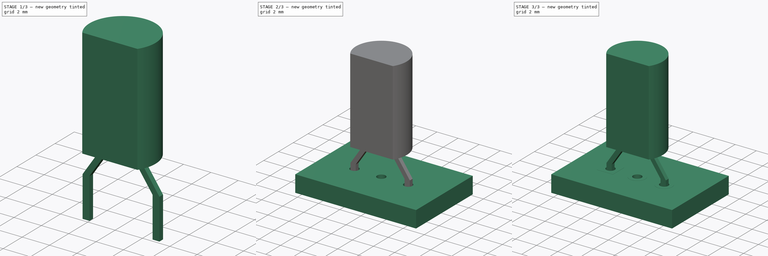
[diagram: build sequence overview — one tinted view per stage of 3, left to right]
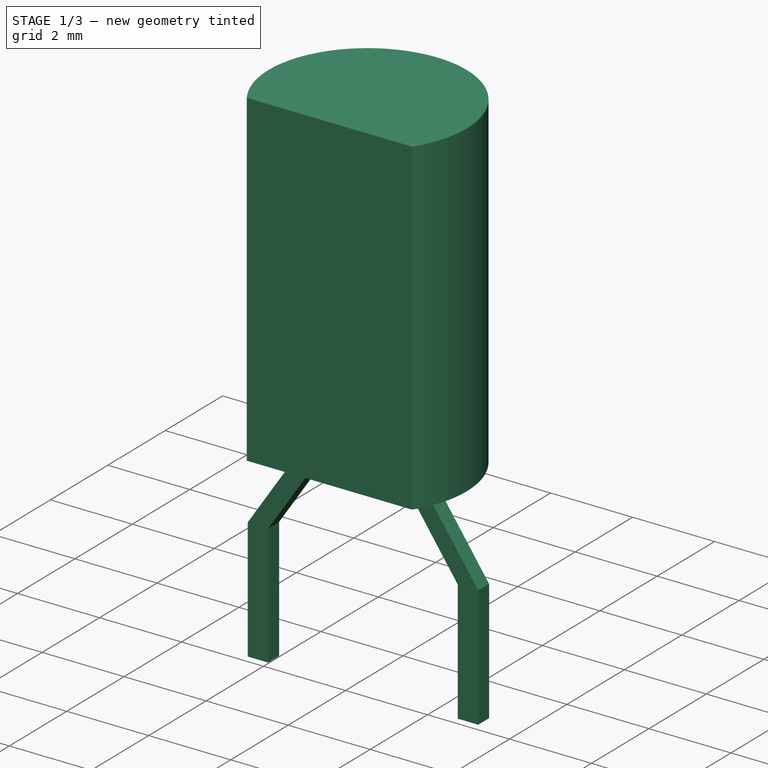
[diagram: stage 1 of 3 — iso view after this stage's code; geometry added in this stage tinted green]
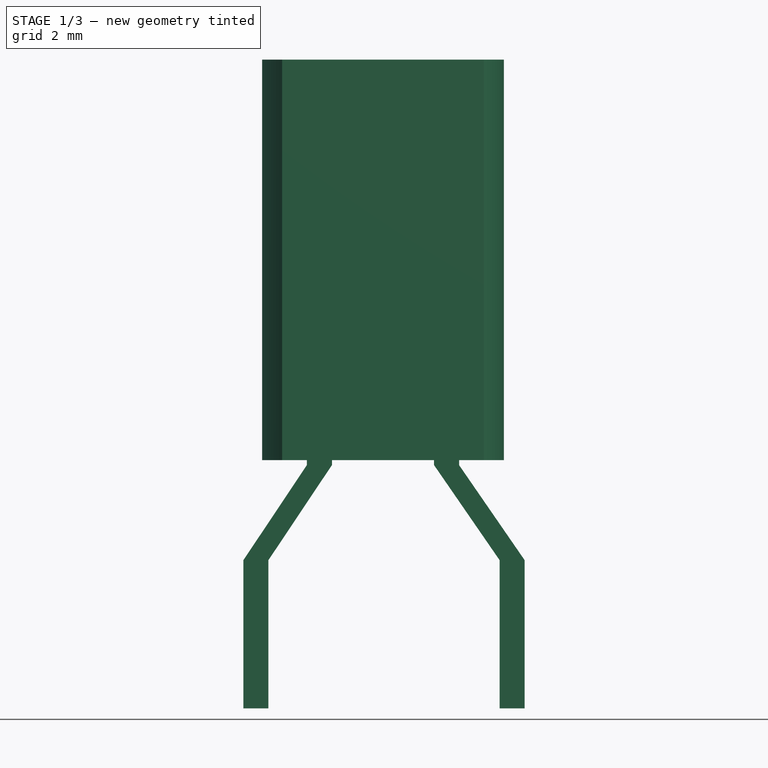
[diagram: stage 1 of 3 — front view after this stage's code; geometry added in this stage tinted green]
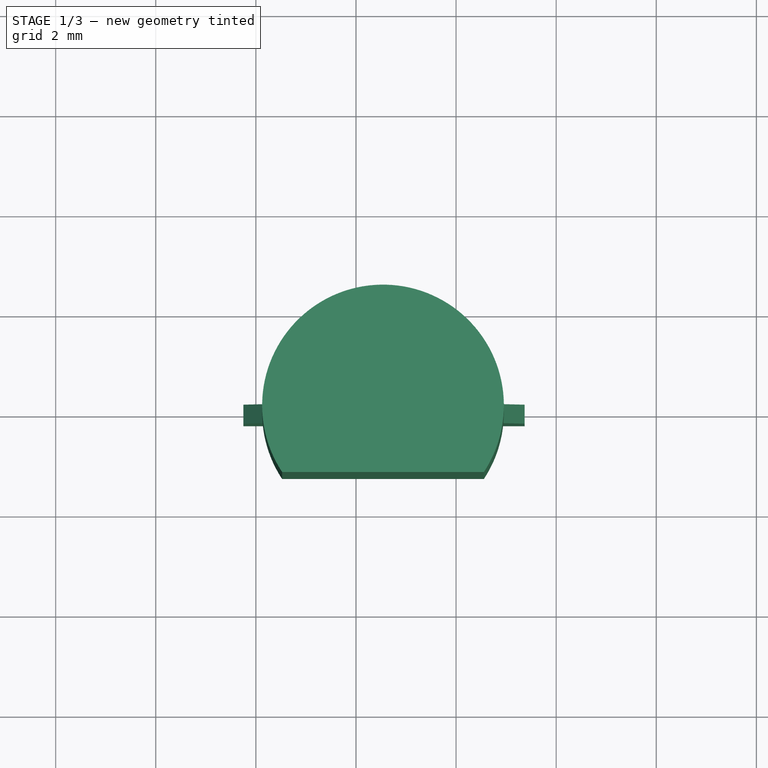
[diagram: stage 1 of 3 — top view after this stage's code; geometry added in this stage tinted green]
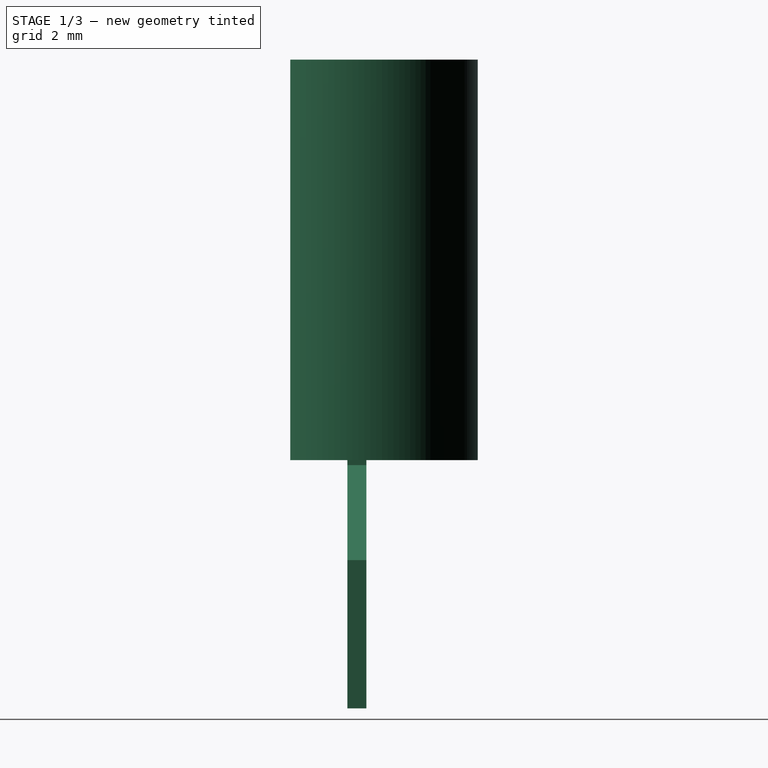
[diagram: stage 1 of 3 — right view after this stage's code; geometry added in this stage tinted green]
FCSTD DOCUMENT  (FreeCAD 0.16R6712 (Git))
Label: TO-92L-2_Wide
License: All rights reserved
LicenseURL: http://en.wikipedia.org/wiki/All_rights_reserved
objects: Part::FeaturePython×7, Sketcher::SketchObject×2, PartDesign::Pad×2, App::DocumentObjectGroup×1, Part::MultiFuse×1
note: 14 computed .brp shape members not serialized (recipe doc carries the construction recipe); baked Part::Feature solids carry a one-line shape summary decoded from their .brp

FEATURE [Sketcher::SketchObject] Sketch
  Placement = pos=(0,0,2.5) rot=(0,0,1;0rad)
  expr: Constraints[8] = 3.68 - 2.35
  expr: Constraints[7] = (5.21 + 4.45) / 4
  sketch-geometry (3):
    g0: LineSegment [constr] StartX=0 StartY=0 StartZ=0 EndX=2.54 EndY=0 EndZ=0
    g1: LineSegment StartX=0.524231 StartY=-1.33 StartZ=0 EndX=4.55577 EndY=-1.33 EndZ=0
    g2: ArcOfCircle CenterX=2.54 CenterY=0 CenterZ=0 NormalX=0 NormalY=0 NormalZ=1 Radius=2.415 StartAngle=5.69995 EndAngle=10.008
  constraints (9):
    c: Coincident(g0,g-1)
    c: Horizontal(g0)
    c: DistanceX(g0,g0) = 2.54
    c: Horizontal(g1)
    c: Coincident(g2,g0)
    c: Coincident(g2,g1)
    c: Coincident(g2,g1)
    c: Radius(g2) = 2.415
    c: DistanceY(g1,g0) = 1.33
FEATURE [PartDesign::Pad] Pad
  Length = 8
  Length2 = 100
  Placement = pos=(0,0,2.5) rot=(0,0,1;0rad)
  Sketch = -> Sketch
  Type = 0
FEATURE [Sketcher::SketchObject] Sketch001
  Placement = pos=(0,0,0) rot=(1,0,0;1.5708rad)
  sketch-geometry (17):
    g0: LineSegment StartX=0.25 StartY=-2.46 StartZ=0 EndX=-0.25 EndY=-2.46 EndZ=0
    g1: LineSegment StartX=-0.25 StartY=-2.46 StartZ=0 EndX=-0.25 EndY=0.5 EndZ=0
    g2: LineSegment StartX=0.25 StartY=0.5 StartZ=0 EndX=0.25 EndY=-2.46 EndZ=0
    g3: LineSegment StartX=1.02 StartY=3.04 StartZ=0 EndX=1.52 EndY=3.04 EndZ=0
    g4: LineSegment StartX=1.52 StartY=3.04 StartZ=0 EndX=1.52 EndY=2.4 EndZ=0
    g5: LineSegment StartX=1.02 StartY=2.4 StartZ=0 EndX=1.02 EndY=3.04 EndZ=0
    g6: GeomPoint [constr] X=0 Y=-2.46 Z=0
    g7: LineSegment StartX=-0.25 StartY=0.5 StartZ=0 EndX=1.02 EndY=2.4 EndZ=0
    g8: LineSegment StartX=0.25 StartY=0.5 StartZ=0 EndX=1.52 EndY=2.4 EndZ=0
    g9: LineSegment StartX=3.56 StartY=3.04 StartZ=0 EndX=4.06 EndY=3.04 EndZ=0
    g10: LineSegment StartX=4.06 StartY=3.04 StartZ=0 EndX=4.06 EndY=2.4 EndZ=0
    g11: LineSegment StartX=3.56 StartY=2.4 StartZ=0 EndX=3.56 EndY=3.04 EndZ=0
    g12: LineSegment StartX=5.37 StartY=0.5 StartZ=0 EndX=5.37 EndY=-2.46 EndZ=0
    g13: LineSegment StartX=5.37 StartY=-2.46 StartZ=0 EndX=4.87 EndY=-2.46 EndZ=0
    g14: LineSegment StartX=4.87 StartY=-2.46 StartZ=0 EndX=4.87 EndY=0.5 EndZ=0
    g15: LineSegment StartX=3.56 StartY=2.4 StartZ=0 EndX=4.87 EndY=0.5 EndZ=0
    g16: LineSegment StartX=5.37 StartY=0.5 StartZ=0 EndX=4.06 EndY=2.4 EndZ=0
  constraints (49):
    c: Coincident(g0,g1)
    c: Coincident(g2,g0)
    c: Horizontal(g0)
    c: Vertical(g1)
    c: Vertical(g2)
    c: Coincident(g3,g4)  'Constraint6'
    c: Coincident(g5,g3)
    c: Horizontal(g3)
    c: Vertical(g4)
    c: Vertical(g5)
    c: Symmetric(g0,g0,g6)
    c: PointOnObject(g6,g-2)
    c: Coincident(g7,g1)
    c: Coincident(g7,g5)
    c: Coincident(g8,g2)
    c: Coincident(g8,g4)
    c: Equal(g1,g2)
    c: Equal(g4,g5)
    c: DistanceY(g4,g3) = 0.64
    c: DistanceY(g1,g3) = 2.54
    c: Coincident(g9,g10)
    c: Coincident(g11,g9)
    c: Horizontal(g9)
    c: Vertical(g10)
    c: Vertical(g11)
    c: Coincident(g12,g13)
    c: Coincident(g13,g14)
    c: Horizontal(g13)
    c: Vertical(g12)
    c: Vertical(g14)
    c: Coincident(g15,g11)
    c: Coincident(g15,g14)
    c: Coincident(g16,g12)
    c: Coincident(g16,g10)
    c: Equal(g9,g13)
    c: DistanceY(g9,g3) = 0
    c: Equal(g11,g4)
    c: Equal(g14,g2)
    c: Equal(g14,g12)
    c: Equal(g11,g10)
    c: DistanceX(g3,g9) = 2.54
    c: DistanceX(g3,g3) = 0.5
    c: Equal(g0,g3)
    c: DistanceY(g13,g0) = 0
    c: DistanceX(g0,g13) = 5.12
    c: DistanceY(g-1,g1) = 0.5
    c: Equal(g3,g9)
    c: DistanceX(g0,g3) = 1.27
    c: DistanceY(g0,g3) = 5.5
FEATURE [PartDesign::Pad] Pad001
  Length = 0.38
  Length2 = 100
  Midplane = true
  Placement = pos=(0,0,0) rot=(1,0,0;1.5708rad)
  Sketch = -> Sketch001
  Type = 0
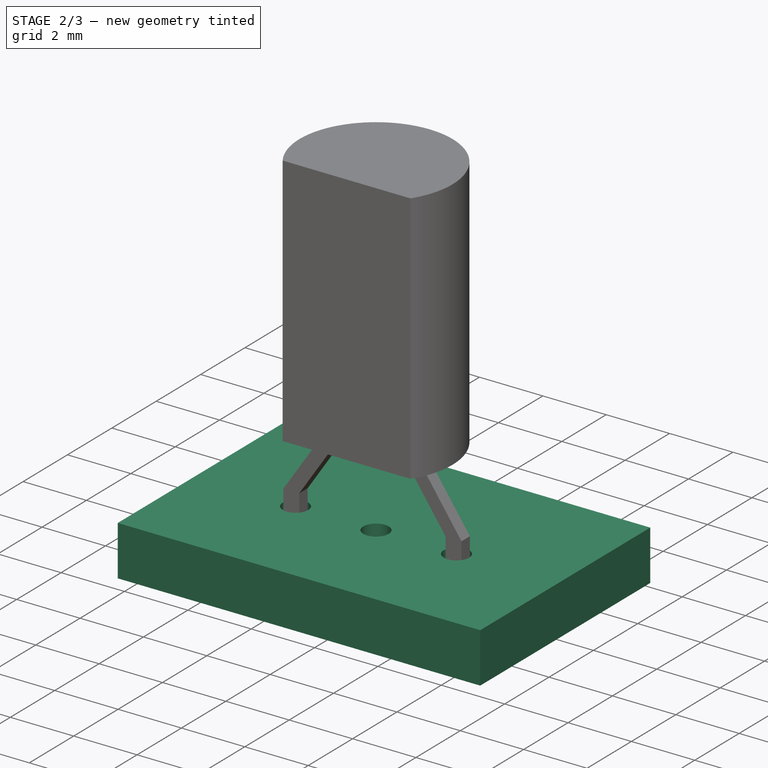
[diagram: stage 2 of 3 — iso view after this stage's code; geometry added in this stage tinted green]
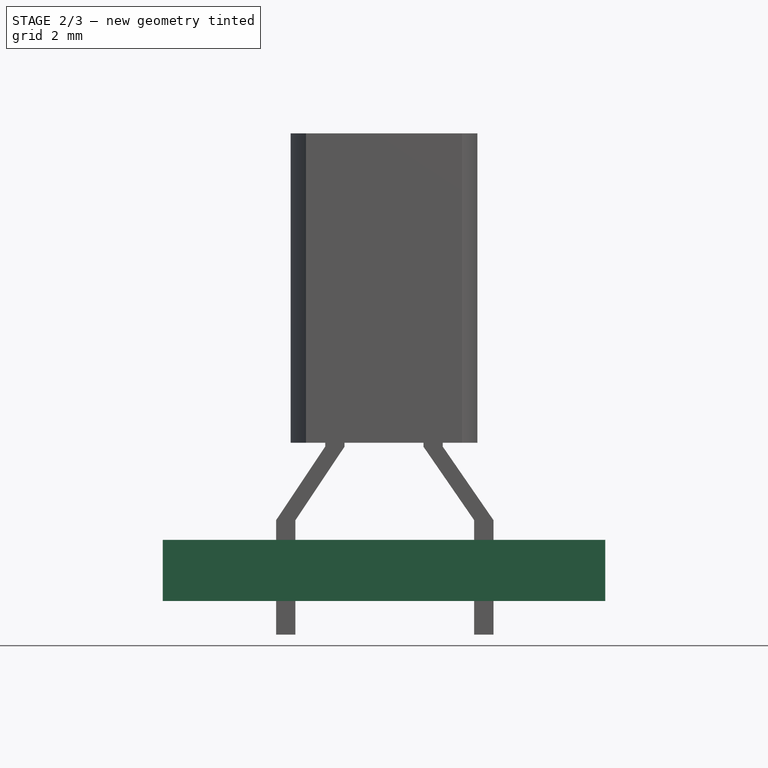
[diagram: stage 2 of 3 — front view after this stage's code; geometry added in this stage tinted green]
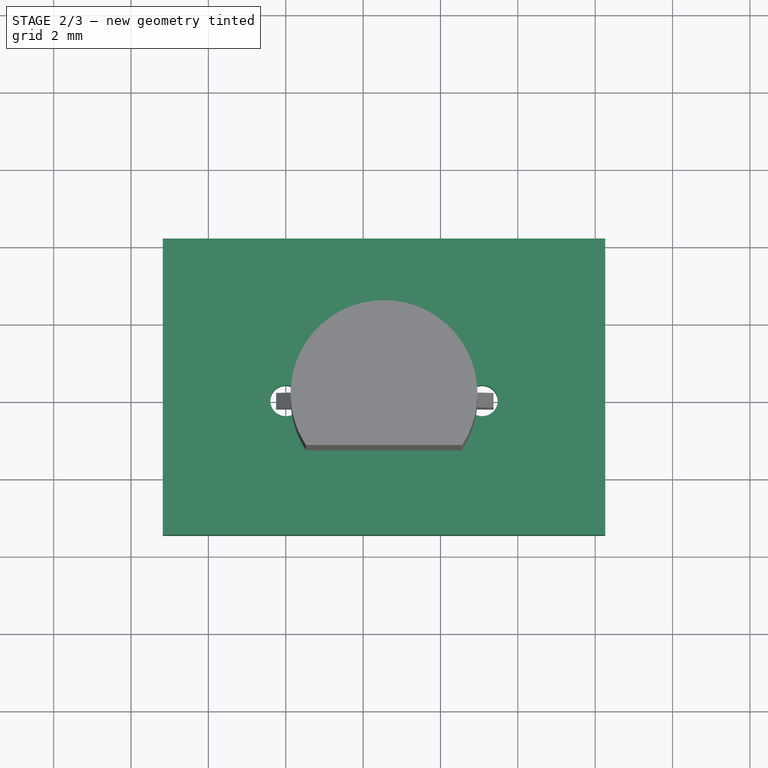
[diagram: stage 2 of 3 — top view after this stage's code; geometry added in this stage tinted green]
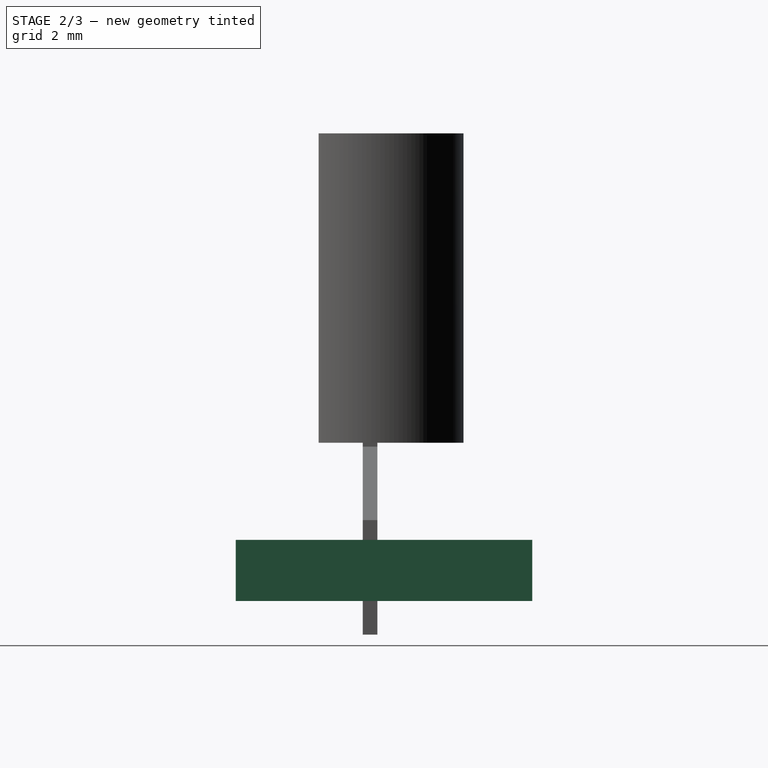
[diagram: stage 2 of 3 — right view after this stage's code; geometry added in this stage tinted green]
FEATURE [Part::FeaturePython] THPs  label="PTHs"  # a2plus imported part (geometry in sourceFile) (typed FeaturePython)
  fixedPosition = true
FEATURE [Part::FeaturePython] newPCB  label="Pcb"  # a2plus imported part (geometry in sourceFile) (typed FeaturePython)
  fixedPosition = true
FEATURE [App::DocumentObjectGroup] TO_92_Inline_Wide_fp
  Group = -> [FCrtYd_lines,FFab_lines,Filk_lines,TopPads,BotPads,THPs,newPCB]
FEATURE [Part::MultiFuse] Pad_mp_cp  label="TO-92L-2_Wide"
  Shapes = -> [Pad,Pad001]
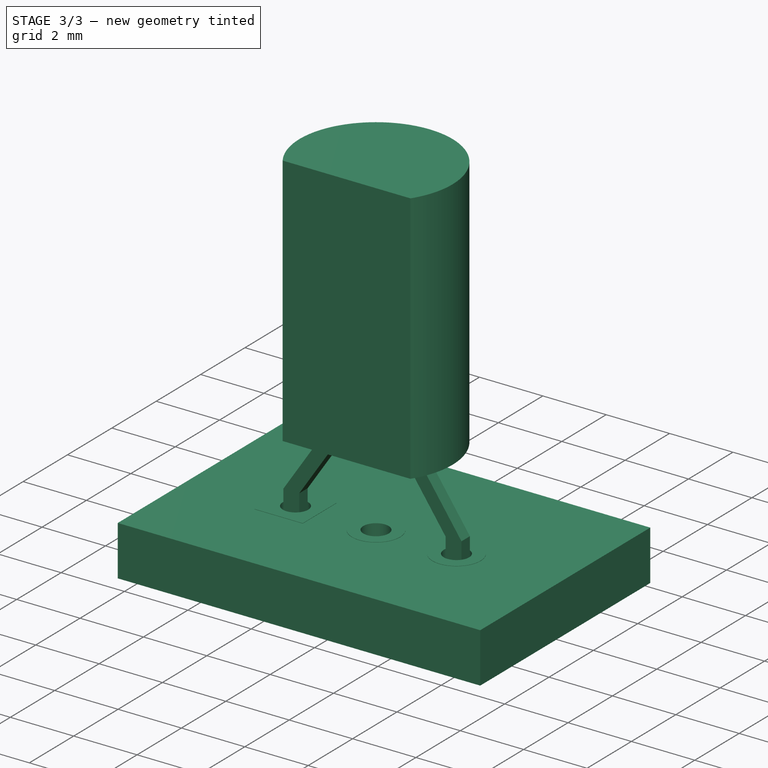
[diagram: stage 3 of 3 — iso view after this stage's code; geometry added in this stage tinted green]
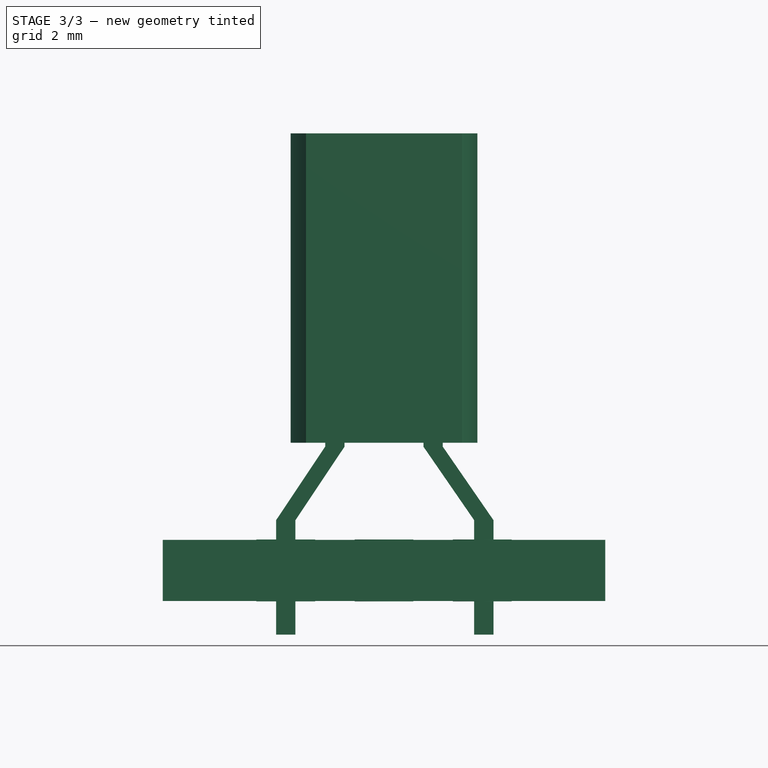
[diagram: stage 3 of 3 — front view after this stage's code; geometry added in this stage tinted green]
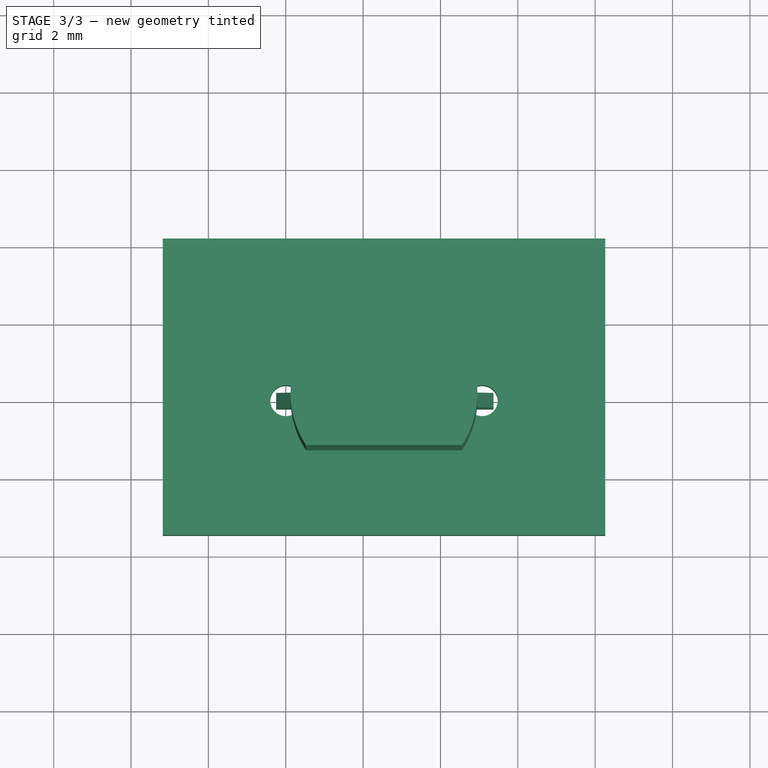
[diagram: stage 3 of 3 — top view after this stage's code; geometry added in this stage tinted green]
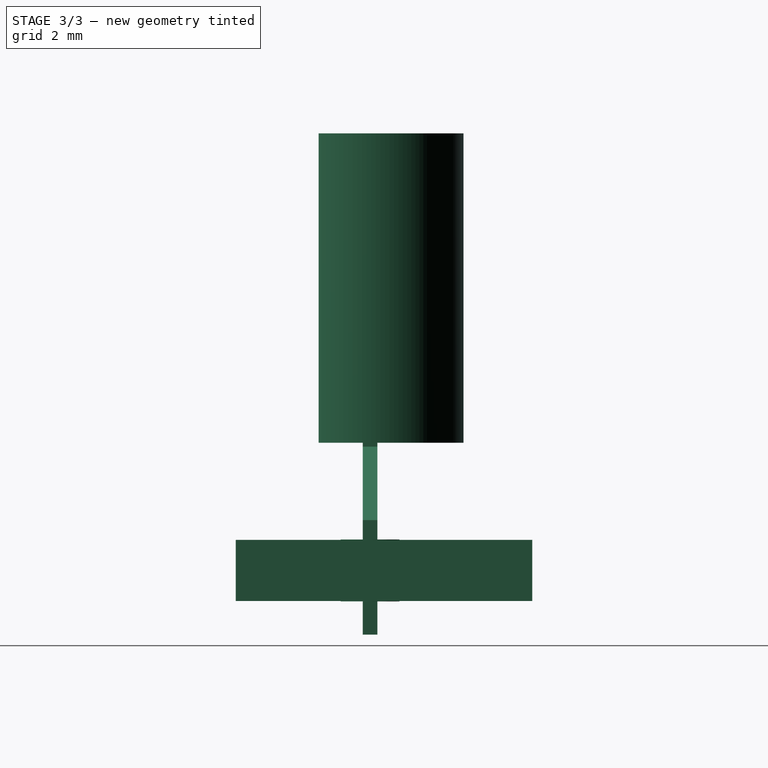
[diagram: stage 3 of 3 — right view after this stage's code; geometry added in this stage tinted green]
FEATURE [Part::FeaturePython] FCrtYd_lines  label="FCrtYd"  # a2plus imported part (geometry in sourceFile) (typed FeaturePython)
  fixedPosition = true
FEATURE [Part::FeaturePython] FFab_lines  label="FFab"  # a2plus imported part (geometry in sourceFile) (typed FeaturePython)
  fixedPosition = true
FEATURE [Part::FeaturePython] Filk_lines  label="FrontSilk"  # a2plus imported part (geometry in sourceFile) (typed FeaturePython)
  fixedPosition = true
FEATURE [Part::FeaturePython] TopPads  # a2plus imported part (geometry in sourceFile) (typed FeaturePython)
  fixedPosition = true
FEATURE [Part::FeaturePython] BotPads  # a2plus imported part (geometry in sourceFile) (typed FeaturePython)
  fixedPosition = true
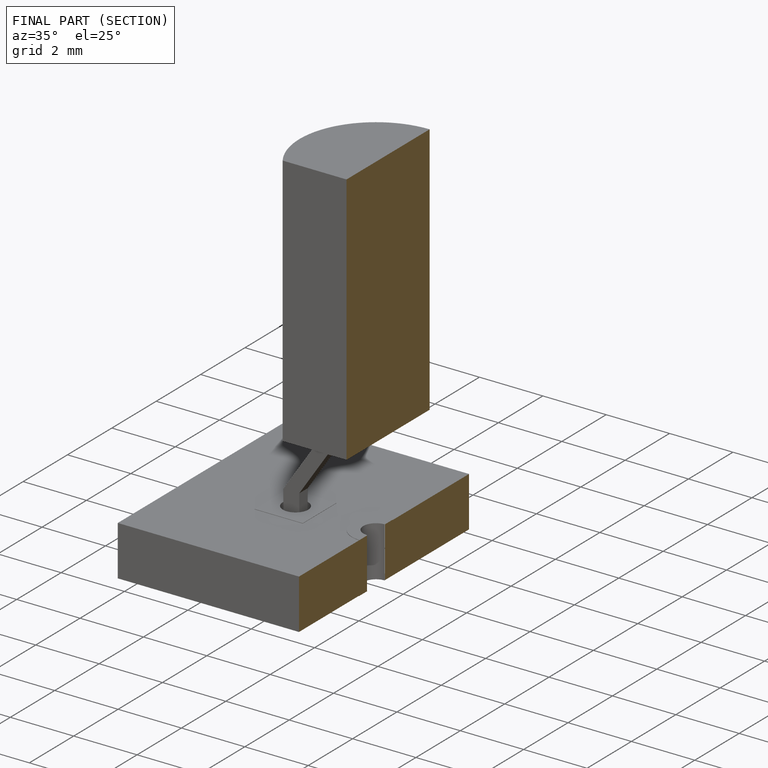
[diagram: finished part — half-section view (interior)]
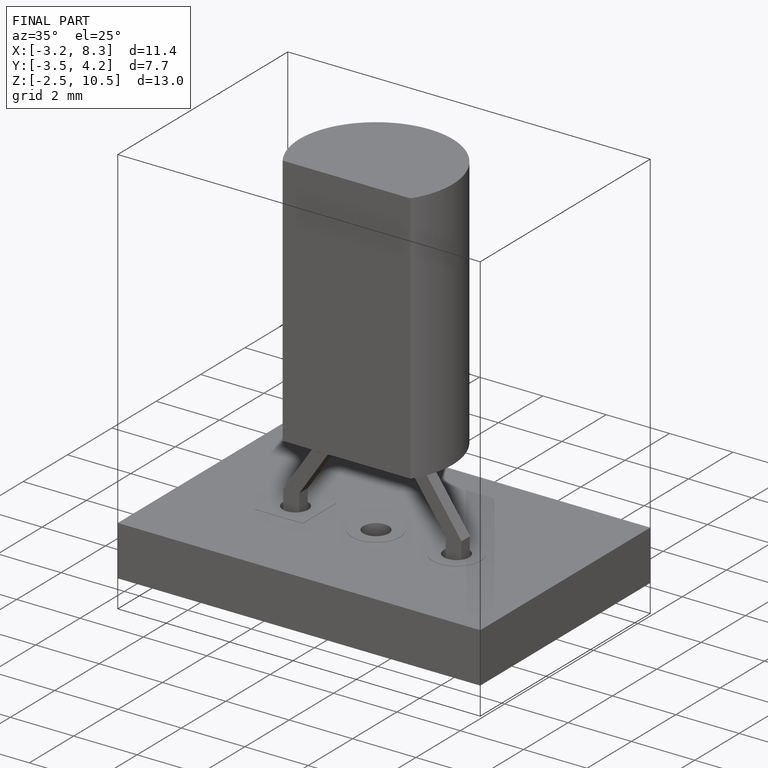
[diagram: finished part — iso view with bounding-box wireframe]
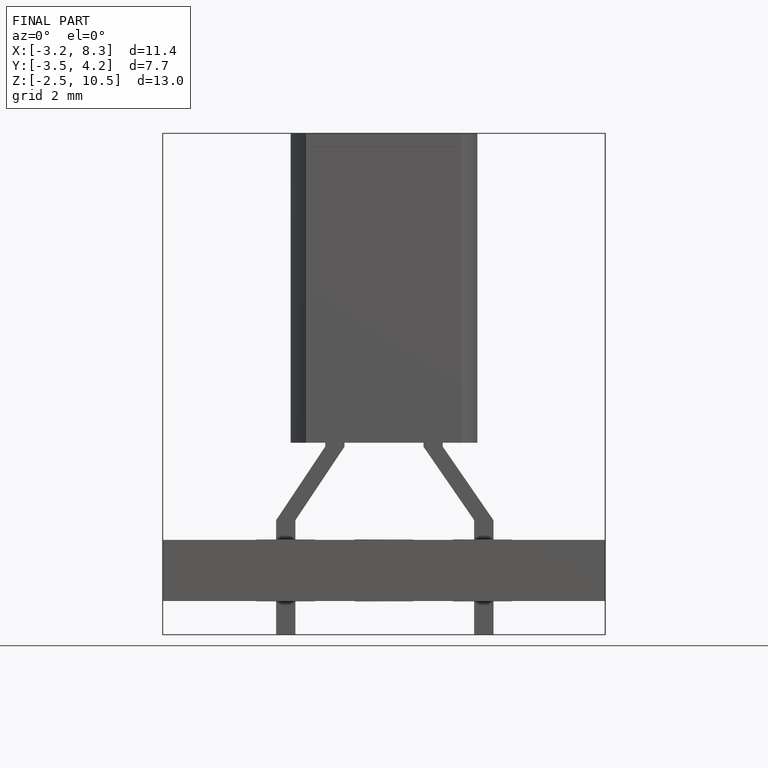
[diagram: finished part — front view with bounding-box wireframe]
